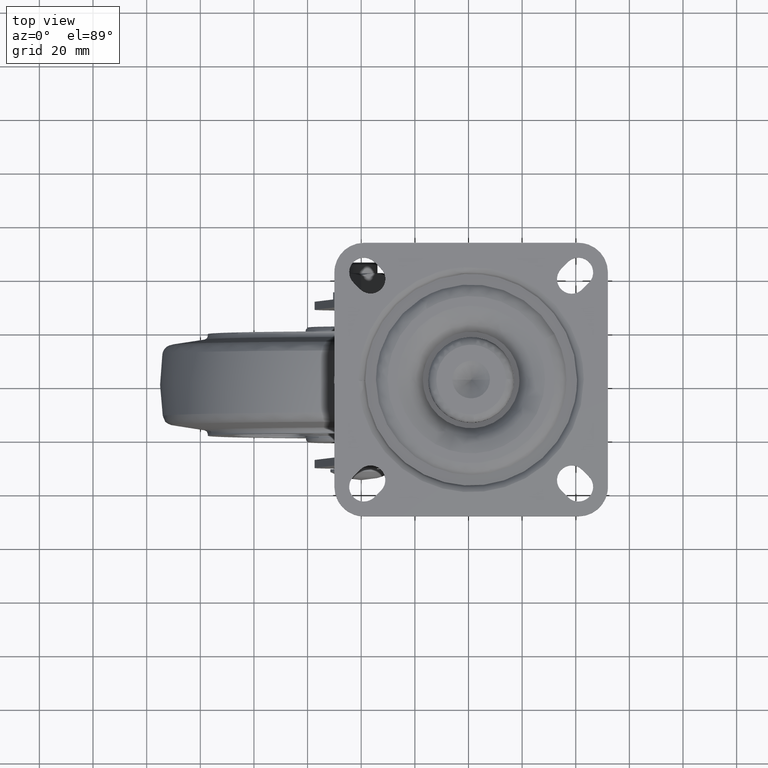
[diagram: clean part render]
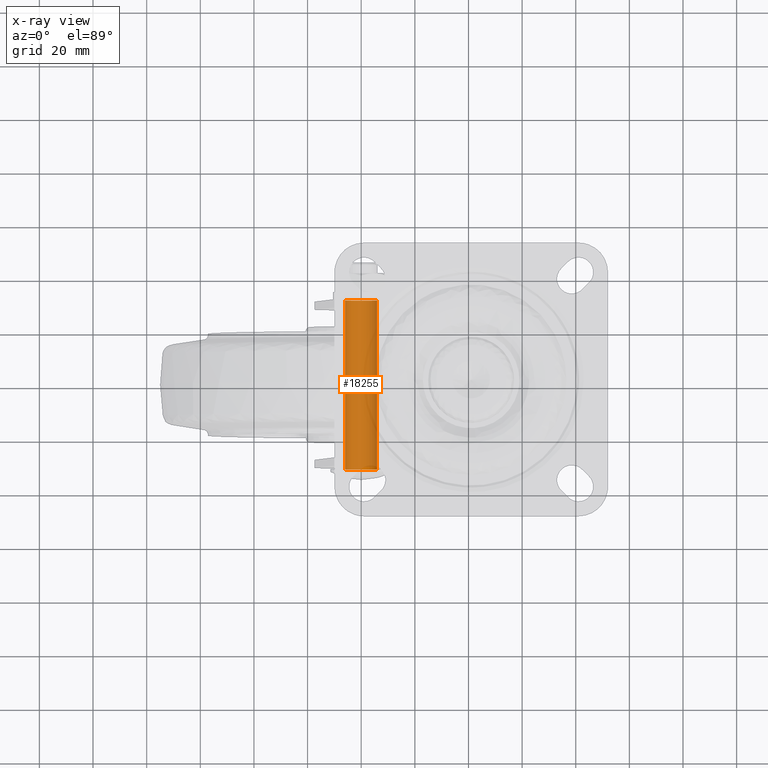
[diagram: x-ray — body ghosted, one internal face saturated and labeled with its STEP entity id]
A machine part, top view, then the same camera in x-ray: the body is ghosted and one INTERNAL B-rep face — a face not visible from any outside direction — is saturated and labeled: STEP entity #18255.
In plain terms, the highlighted face is a freeform B-spline surface patch.
Its self-contained STEP definition (entity closure, byte-faithful):
#18153=CARTESIAN_POINT('',(5.958057158181772,-33.075000000000003,0.708205407940531));
#18154=CARTESIAN_POINT('',(5.978325692691407,-33.075000000000003,0.537688371827851));
#18155=CARTESIAN_POINT('',(5.988808790530974,-33.075000000000003,0.366291237209131));
#18156=CARTESIAN_POINT('',(6.355100027740106,-33.074999999999996,-5.622517553321900));
#18157=CARTESIAN_POINT('',(0.366291237209075,-33.075000000000003,-5.988808790531031));
#18158=CARTESIAN_POINT('',(-5.622517553321956,-33.074999999999996,-6.355100027740162));
#18159=CARTESIAN_POINT('',(-5.988808790531087,-33.075000000000003,-0.366291237209131));
#18160=CARTESIAN_POINT('',(5.958057158181772,33.114375000000003,0.708205407940531));
#18161=CARTESIAN_POINT('',(5.978325692691407,33.114375000000010,0.537688371827851));
#18162=CARTESIAN_POINT('',(5.988808790530974,33.114375000000010,0.366291237209131));
#18163=CARTESIAN_POINT('',(6.355100027740106,33.114375000000010,-5.622517553321900));
#18164=CARTESIAN_POINT('',(0.366291237209075,33.114375000000010,-5.988808790531031));
#18165=CARTESIAN_POINT('',(-5.622517553321956,33.114375000000010,-6.355100027740162));
#18166=CARTESIAN_POINT('',(-5.988808790531087,33.114375000000010,-0.366291237209131));
#18174=(BOUNDED_SURFACE()B_SPLINE_SURFACE(2,1,((#18153,#18160),(#18154,#18161),(#18155,#18162),(#18156,#18163),(#18157,#18164),(#18158,#18165),(#18159,#18166)),.UNSPECIFIED.,.F.,.F.,.U.)B_SPLINE_SURFACE_WITH_KNOTS((3,2,2,3),(2,2),(0.0,0.397645019878160,10.338770516832160,20.279896013786150),(0.0,66.189375000000027),.UNSPECIFIED.)GEOMETRIC_REPRESENTATION_ITEM()RATIONAL_B_SPLINE_SURFACE(((0.977505800795127,0.977505800795127),(0.988284271247462,0.988284271247462),(1.0,1.0),(0.707106781186548,0.707106781186548),(1.0,1.0),(0.707106781186548,0.707106781186548),(1.0,1.0)))REPRESENTATION_ITEM('')SURFACE());
#18175=CARTESIAN_POINT('',(5.958057158115699,31.500000000000000,0.708205408496399));
#18176=VERTEX_POINT('',#18175);
#18177=CARTESIAN_POINT('',(-5.684342E-014,31.500000000000000,-5.999999999999830));
#18178=VERTEX_POINT('',#18177);
#18179=CARTESIAN_POINT('',(5.958057158115699,31.500000000000004,0.708205408496399));
#18180=CARTESIAN_POINT('',(5.999999999999773,31.500000000000000,0.355344718473195));
#18181=CARTESIAN_POINT('',(5.999999999999773,31.500000000000000,0.0));
#18182=CARTESIAN_POINT('',(5.999999999999772,31.500000000000007,-5.999999999999830));
#18183=CARTESIAN_POINT('',(-5.684342E-014,31.500000000000000,-5.999999999999830));
#18191=(BOUNDED_CURVE()B_SPLINE_CURVE(2,(#18179,#18180,#18181,#18182,#18183),.UNSPECIFIED.,.F.,.U.)B_SPLINE_CURVE_WITH_KNOTS((3,2,3),(0.729562473484109,0.750000000000000,1.0),.UNSPECIFIED.)CURVE()GEOMETRIC_REPRESENTATION_ITEM()RATIONAL_B_SPLINE_CURVE((0.956026754126076,0.976055948296702,1.0,0.707106781186547,1.0))REPRESENTATION_ITEM(''));
#18192=EDGE_CURVE('',#18176,#18178,#18191,.T.);
#18193=ORIENTED_EDGE('',*,*,#18192,.F.);
#18194=CARTESIAN_POINT('',(5.958057158115699,-31.500000000000000,0.708205408496398));
#18195=VERTEX_POINT('',#18194);
#18196=CARTESIAN_POINT('',(5.958057158115699,-31.500000000000000,0.708205408496398));
#18197=CARTESIAN_POINT('',(5.958057158115699,31.500000000000000,0.708205408496399));
#18198=QUASI_UNIFORM_CURVE('',1,(#18196,#18197),.UNSPECIFIED.,.F.,.U.);
#18199=EDGE_CURVE('',#18195,#18176,#18198,.T.);
#18200=ORIENTED_EDGE('',*,*,#18199,.F.);
#18201=CARTESIAN_POINT('',(-5.684342E-014,-31.500000000000000,-5.999999999999830));
#18202=VERTEX_POINT('',#18201);
#18203=CARTESIAN_POINT('',(5.958057158115699,-31.500000000000004,0.708205408496398));
#18204=CARTESIAN_POINT('',(5.999999999999773,-31.500000000000000,0.355344718473194));
#18205=CARTESIAN_POINT('',(5.999999999999773,-31.500000000000000,0.0));
#18206=CARTESIAN_POINT('',(5.999999999999772,-31.500000000000007,-5.999999999999830));
#18207=CARTESIAN_POINT('',(-5.684342E-014,-31.500000000000000,-5.999999999999830));
#18215=(BOUNDED_CURVE()B_SPLINE_CURVE(2,(#18203,#18204,#18205,#18206,#18207),.UNSPECIFIED.,.F.,.U.)B_SPLINE_CURVE_WITH_KNOTS((3,2,3),(0.229562473484109,0.250000000000000,0.500000000000000),.UNSPECIFIED.)CURVE()GEOMETRIC_REPRESENTATION_ITEM()RATIONAL_B_SPLINE_CURVE((0.956026754126076,0.976055948296702,1.0,0.707106781186547,1.0))REPRESENTATION_ITEM(''));
#18216=EDGE_CURVE('',#18195,#18202,#18215,.T.);
#18217=ORIENTED_EDGE('',*,*,#18216,.T.);
#18218=CARTESIAN_POINT('',(-5.988808790528147,-31.500000000000000,-0.366291237257216));
#18219=VERTEX_POINT('',#18218);
#18220=CARTESIAN_POINT('',(-5.684342E-014,-31.500000000000000,-5.999999999999830));
#18221=CARTESIAN_POINT('',(-5.644236401343282,-31.500000000000004,-5.999999999999830));
#18222=CARTESIAN_POINT('',(-5.988808790528148,-31.500000000000000,-0.366291237257216));
#18230=(BOUNDED_CURVE()B_SPLINE_CURVE(2,(#18220,#18221,#18222),.UNSPECIFIED.,.F.,.U.)B_SPLINE_CURVE_WITH_KNOTS((3,3),(0.500000000000000,0.739332962239198),.UNSPECIFIED.)CURVE()GEOMETRIC_REPRESENTATION_ITEM()RATIONAL_B_SPLINE_CURVE((1.0,0.719603993286411,0.976072041667265))REPRESENTATION_ITEM(''));
#18231=EDGE_CURVE('',#18202,#18219,#18230,.T.);
#18232=ORIENTED_EDGE('',*,*,#18231,.T.);
#18233=CARTESIAN_POINT('',(-5.988808790528147,31.500000000000000,-0.366291237257216));
#18234=VERTEX_POINT('',#18233);
#18235=CARTESIAN_POINT('',(-5.988808790528147,-31.500000000000000,-0.366291237257216));
#18236=CARTESIAN_POINT('',(-5.988808790528147,31.500000000000000,-0.366291237257216));
#18237=QUASI_UNIFORM_CURVE('',1,(#18235,#18236),.UNSPECIFIED.,.F.,.U.);
#18238=EDGE_CURVE('',#18219,#18234,#18237,.T.);
#18239=ORIENTED_EDGE('',*,*,#18238,.T.);
#18240=CARTESIAN_POINT('',(-5.684342E-014,31.500000000000000,-5.999999999999830));
#18241=CARTESIAN_POINT('',(-5.644236401343262,31.500000000000004,-5.999999999999829));
#18242=CARTESIAN_POINT('',(-5.988808790528147,31.499999999999996,-0.366291237257216));
#18250=(BOUNDED_CURVE()B_SPLINE_CURVE(2,(#18240,#18241,#18242),.UNSPECIFIED.,.F.,.U.)B_SPLINE_CURVE_WITH_KNOTS((3,3),(0.0,0.239332962239198),.UNSPECIFIED.)CURVE()GEOMETRIC_REPRESENTATION_ITEM()RATIONAL_B_SPLINE_CURVE((1.0,0.719603993286412,0.976072041667264))REPRESENTATION_ITEM(''));
#18251=EDGE_CURVE('',#18178,#18234,#18250,.T.);
#18252=ORIENTED_EDGE('',*,*,#18251,.F.);
#18253=EDGE_LOOP('',(#18193,#18200,#18217,#18232,#18239,#18252));
#18254=FACE_OUTER_BOUND('',#18253,.T.);
#18255=ADVANCED_FACE('',(#18254),#18174,.T.);